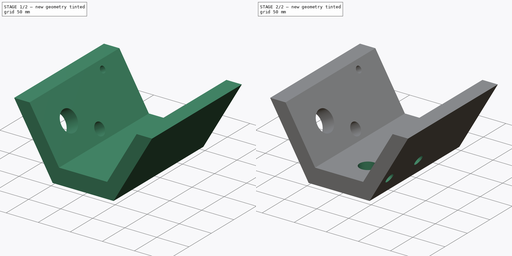
[diagram: build sequence overview — one tinted view per stage of 2, left to right]
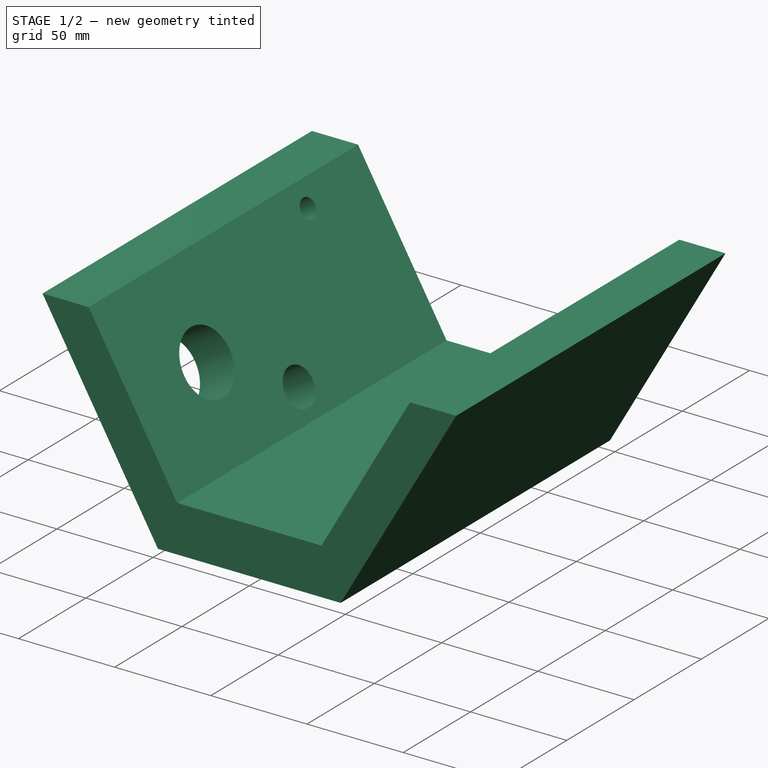
[diagram: stage 1 of 2 — iso view after this stage's code; geometry added in this stage tinted green]
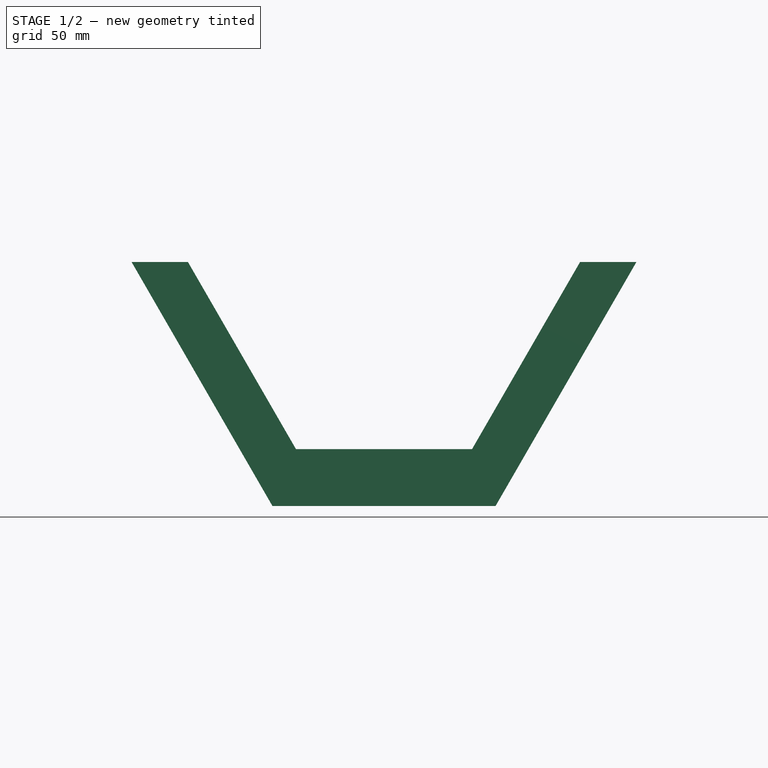
[diagram: stage 1 of 2 — front view after this stage's code; geometry added in this stage tinted green]
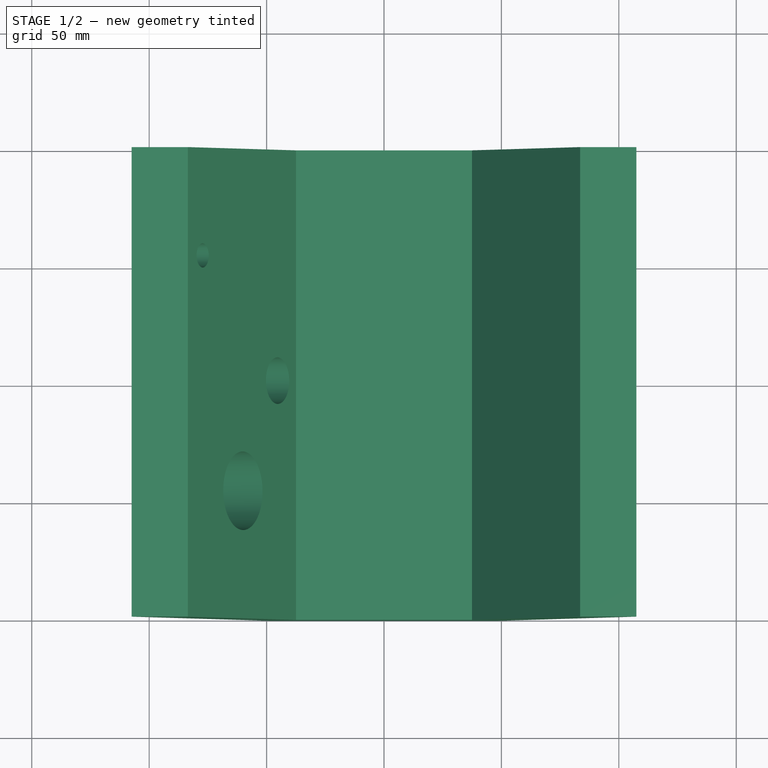
[diagram: stage 1 of 2 — top view after this stage's code; geometry added in this stage tinted green]
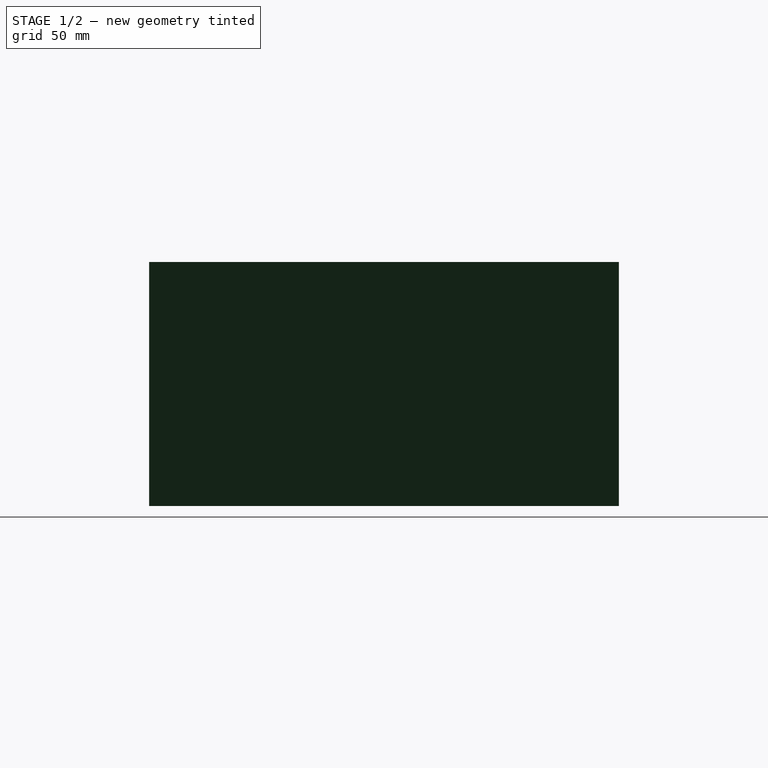
[diagram: stage 1 of 2 — right view after this stage's code; geometry added in this stage tinted green]
FCSTD DOCUMENT  (FreeCAD 0.18R16268 (Git))
Label: 4thDrillingTrunnion
License: All rights reserved
LicenseURL: http://en.wikipedia.org/wiki/All_rights_reserved
objects: Sketcher::SketchObject×4, PartDesign::Pocket×3, App::FeaturePython×2, Part::FeaturePython×2, PartDesign::Pad×1, PartDesign::Body×1
note: 14 computed .brp shape members not serialized (recipe doc carries the construction recipe); baked Part::Feature solids carry a one-line shape summary decoded from their .brp

FEATURE [App::FeaturePython] Constraints  # WARN: FeaturePython — macro-defined, semantics opaque (R4)
  _Version = 1
FEATURE [App::FeaturePython] Elements  # WARN: FeaturePython — macro-defined, semantics opaque (R4)
FEATURE [Part::FeaturePython] Parts  # WARN: FeaturePython — macro-defined, semantics opaque (R4)
  GroupMode = 0
FEATURE [Part::FeaturePython] Assembly  # WARN: FeaturePython — macro-defined, semantics opaque (R4)
  AutoRelax = true
  BuildShape = 0
  Freeze = false
  Group = -> [Constraints,Elements,Parts]
  Verbose = false
  _SolverType = 1
FEATURE [Sketcher::SketchObject] Sketch
  MapMode = 5
  Placement = pos=(0,0,0) rot=(1,0,0;1.5708rad)
  Support = -> [XZ_Plane]
  sketch-geometry (8):
    g0: LineSegment StartX=-107.5 StartY=103.923 StartZ=0 EndX=-47.5 EndY=0 EndZ=0
    g1: LineSegment StartX=-47.5 StartY=0 StartZ=0 EndX=47.5 EndY=0 EndZ=0
    g2: LineSegment StartX=47.5 StartY=0 StartZ=0 EndX=107.5 EndY=103.923 EndZ=0
    g3: LineSegment StartX=107.5 StartY=103.923 StartZ=0 EndX=83.5 EndY=103.923 EndZ=0
    g4: LineSegment StartX=83.5 StartY=103.923 StartZ=0 EndX=37.5 EndY=24.2487 EndZ=0
    g5: LineSegment StartX=37.5 StartY=24.2487 StartZ=0 EndX=-37.5 EndY=24.2487 EndZ=0
    g6: LineSegment StartX=-37.5 StartY=24.2487 StartZ=0 EndX=-83.5 EndY=103.923 EndZ=0
    g7: LineSegment StartX=-83.5 StartY=103.923 StartZ=0 EndX=-107.5 EndY=103.923 EndZ=0
  constraints (20):
    c: Coincident(g0,g1)
    c: Coincident(g1,g2)
    c: Coincident(g2,g3)
    c: Horizontal(g3)
    c: Coincident(g3,g4)
    c: Coincident(g4,g5)
    c: Coincident(g5,g6)
    c: Coincident(g6,g7)
    c: Coincident(g7,g0)
    c: Symmetric(g6,g3,g-2)
    c: Symmetric(g0,g2,g-2)
    c: Symmetric(g0,g1,g-2)
    c: Symmetric(g5,g4,g-2)
    c: Parallel(g0,g6)
    c: PointOnObject(g0,g-1)
    c: DistanceX(g7,g7) = 24
    c: DistanceX(g1,g1) = 95
    c: Distance(g0) = 120
    c: Angle(g1,g0) = 2.0944
    c: Distance(g5) = 75
FEATURE [PartDesign::Pad] Pad
  ClaimChildren = false
  Length = 200
  Length2 = 100
  Placement = pos=(0,0,0) rot=(1,0,0;1.5708rad)
  Profile = -> Sketch
  Type = 0
FEATURE [Sketcher::SketchObject] Sketch001
  MapMode = 5
  Placement = pos=(-17.625,-6.8e-15,-10.1758) rot=(0.5,0,0.866025;3.14159rad)
  Support = -> [Pad]
  sketch-geometry (3):
    g0: Circle CenterX=84.9376 CenterY=145.664 CenterZ=0 NormalX=0 NormalY=0 NormalZ=1 AngleXU=0 Radius=16.7279
    g1: Circle CenterX=55.3898 CenterY=98.3206 CenterZ=0 NormalX=0 NormalY=0 NormalZ=1 AngleXU=0 Radius=9.91244
    g2: Circle CenterX=119.186 CenterY=45.9405 CenterZ=0 NormalX=0 NormalY=0 NormalZ=1 AngleXU=0 Radius=5.1682
FEATURE [PartDesign::Pocket] Pocket
  BaseFeature = -> Pad
  ClaimChildren = false
  Length = 5
  Length2 = 100
  Placement = pos=(0,0,0) rot=(1,0,0;1.5708rad)
  Profile = -> Sketch001
  Type = 1
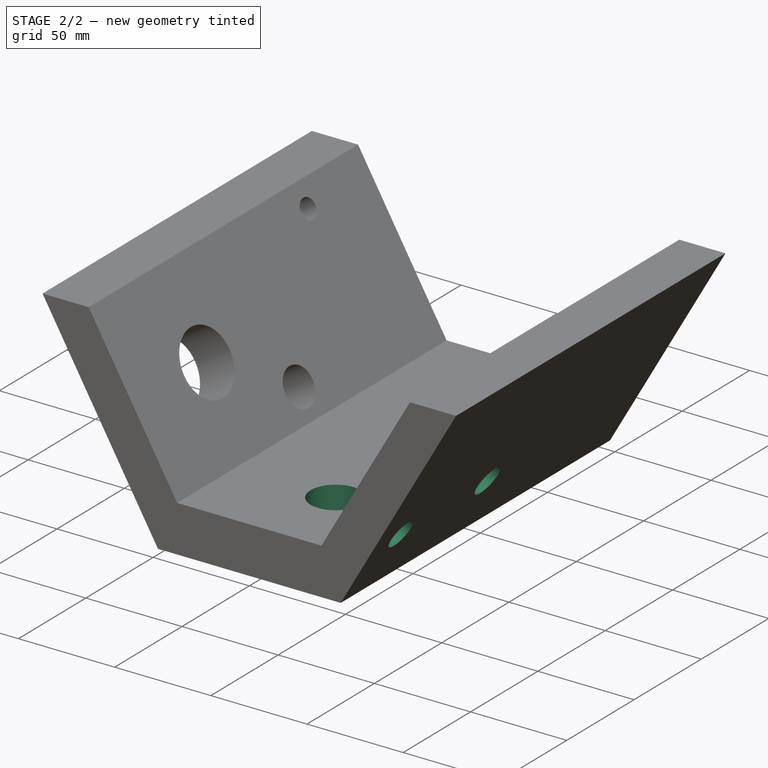
[diagram: stage 2 of 2 — iso view after this stage's code; geometry added in this stage tinted green]
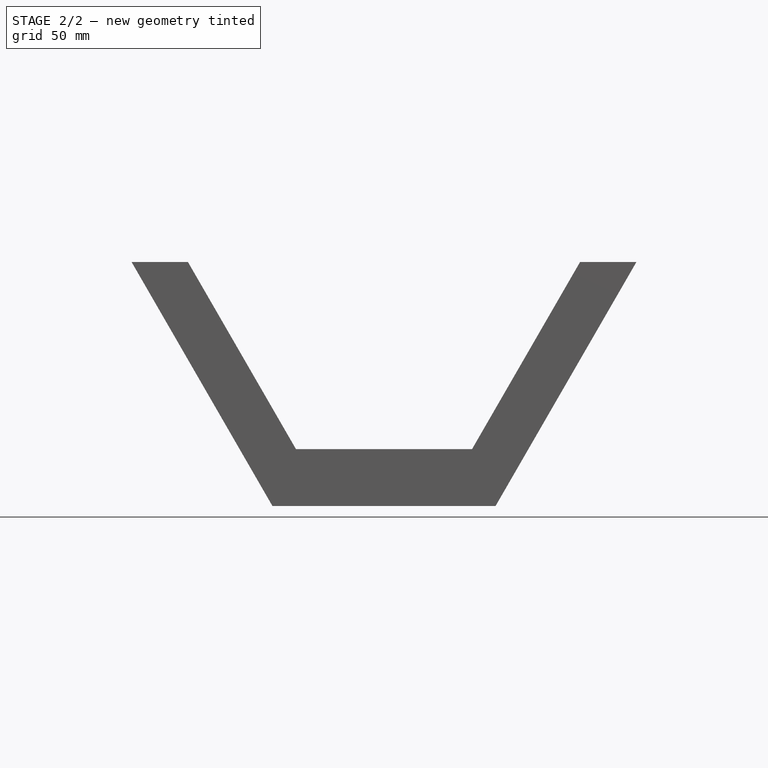
[diagram: stage 2 of 2 — front view after this stage's code; geometry added in this stage tinted green]
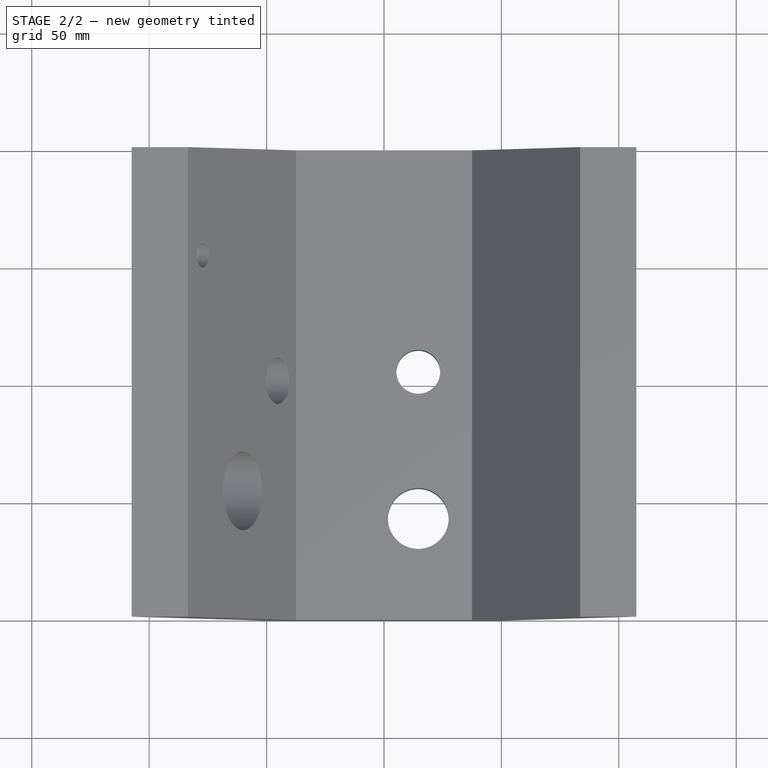
[diagram: stage 2 of 2 — top view after this stage's code; geometry added in this stage tinted green]
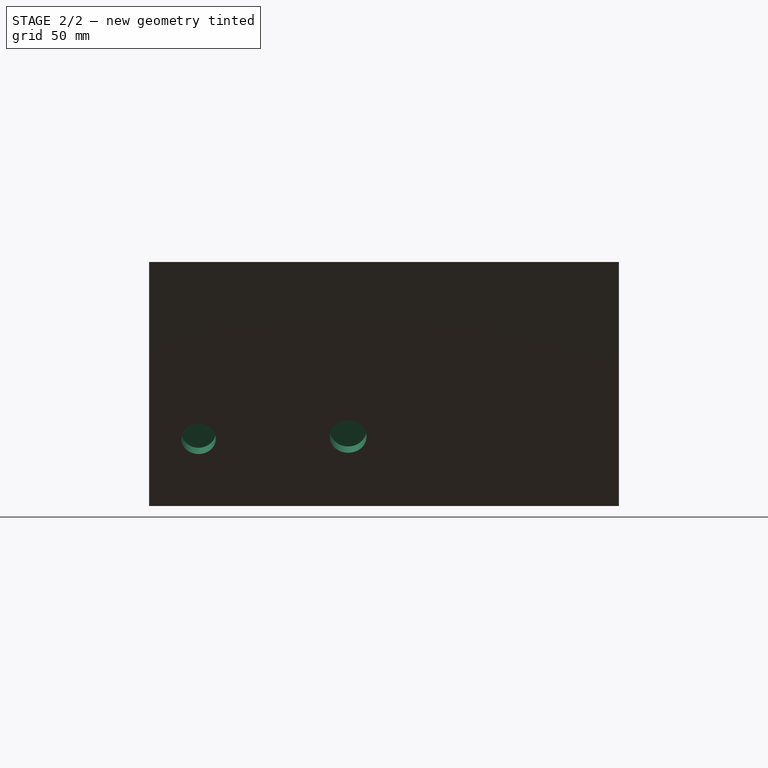
[diagram: stage 2 of 2 — right view after this stage's code; geometry added in this stage tinted green]
FEATURE [Sketcher::SketchObject] Sketch002
  MapMode = 5
  Placement = pos=(1.1e-15,2.69e-14,24.2487) rot=(0,0,1;3.14159rad)
  Support = -> [Pocket]
  sketch-geometry (2):
    g0: Circle CenterX=-14.6058 CenterY=156.803 CenterZ=0 NormalX=0 NormalY=0 NormalZ=1 AngleXU=0 Radius=12.9172
    g1: Circle CenterX=-14.6058 CenterY=94.3173 CenterZ=0 NormalX=0 NormalY=0 NormalZ=1 AngleXU=0 Radius=9.32698
FEATURE [Sketcher::SketchObject] Sketch003
  MapMode = 5
  Placement = pos=(37.5327,-2.36e-14,-15.1723) rot=(-0.559116,0,0.829089;3.14159rad)
  sketch-geometry (2):
    g0: Circle CenterX=-50.5045 CenterY=178.977 CenterZ=0 NormalX=0 NormalY=0 NormalZ=1 AngleXU=0 Radius=7.38021
    g1: Circle CenterX=-51.5785 CenterY=115.254 CenterZ=0 NormalX=0 NormalY=0 NormalZ=1 AngleXU=0 Radius=7.85138
FEATURE [PartDesign::Pocket] Pocket002
  BaseFeature = -> Pocket
  ClaimChildren = false
  Length = 5
  Length2 = 100
  Placement = pos=(0,0,0) rot=(1,0,0;1.5708rad)
  Profile = -> Sketch003
  Type = 1
FEATURE [PartDesign::Pocket] Pocket003
  BaseFeature = -> Pocket002
  ClaimChildren = false
  Length = 5
  Length2 = 100
  Placement = pos=(0,0,0) rot=(1,0,0;1.5708rad)
  Profile = -> Sketch002
  Type = 1
FEATURE [PartDesign::Body] Body
  Group = -> [Sketch,Pad,Sketch001,Pocket,Sketch002,Sketch003,Pocket002,Pocket003]
  Origin = -> Origin
  Tip = -> Pocket003
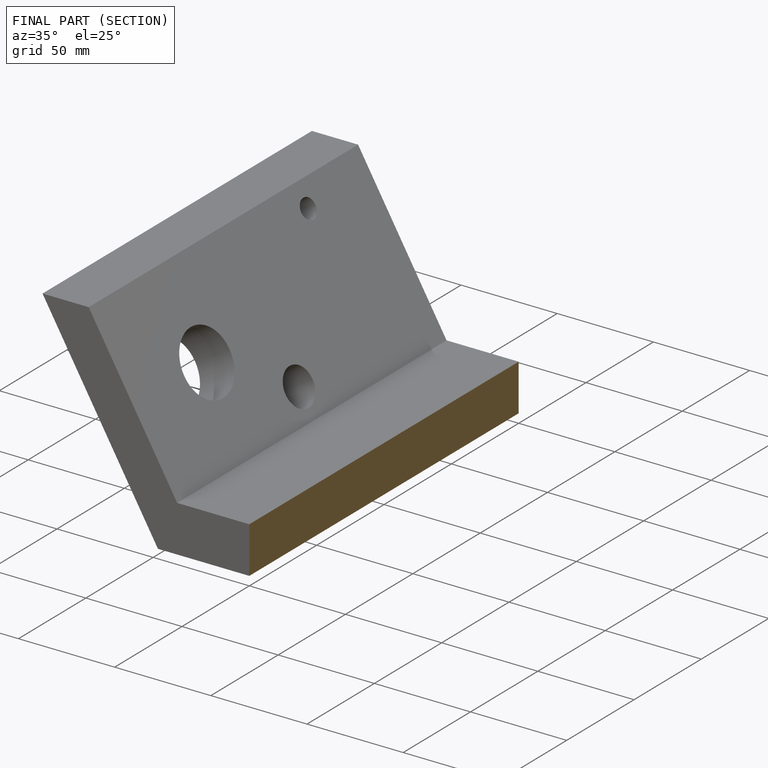
[diagram: finished part — half-section view (interior)]
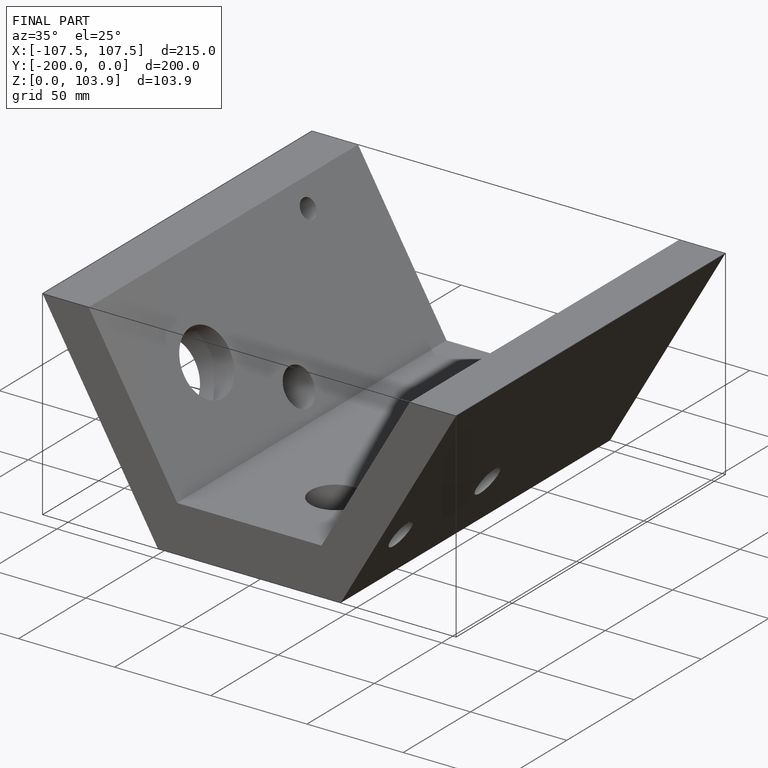
[diagram: finished part — iso view with bounding-box wireframe]
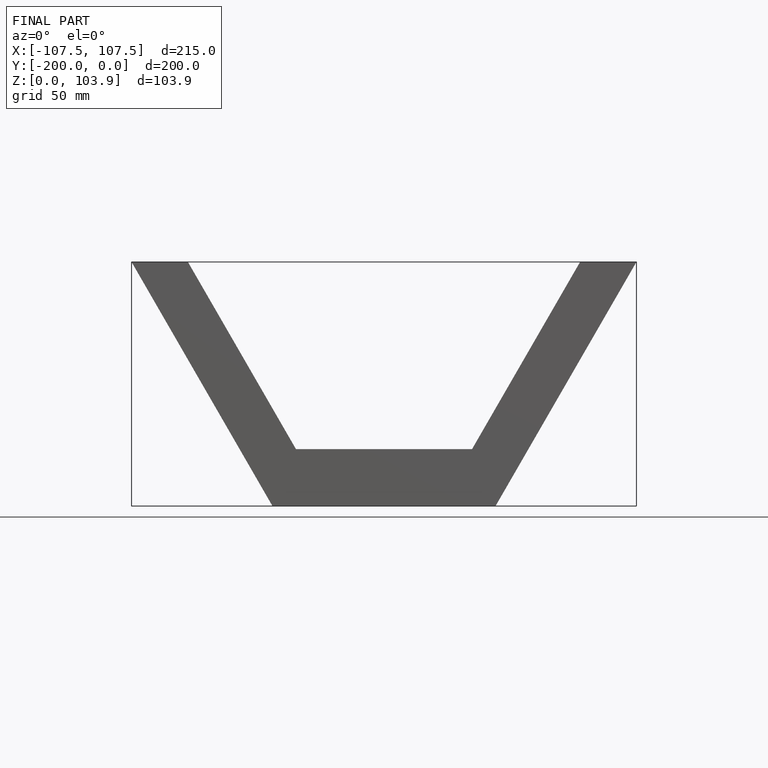
[diagram: finished part — front view with bounding-box wireframe]
